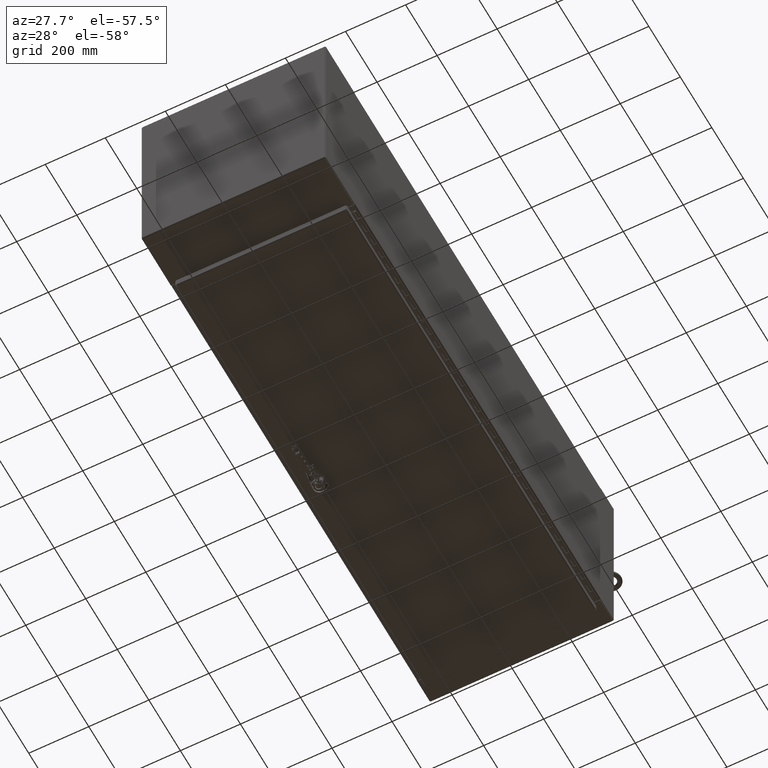
[diagram: clean part render]
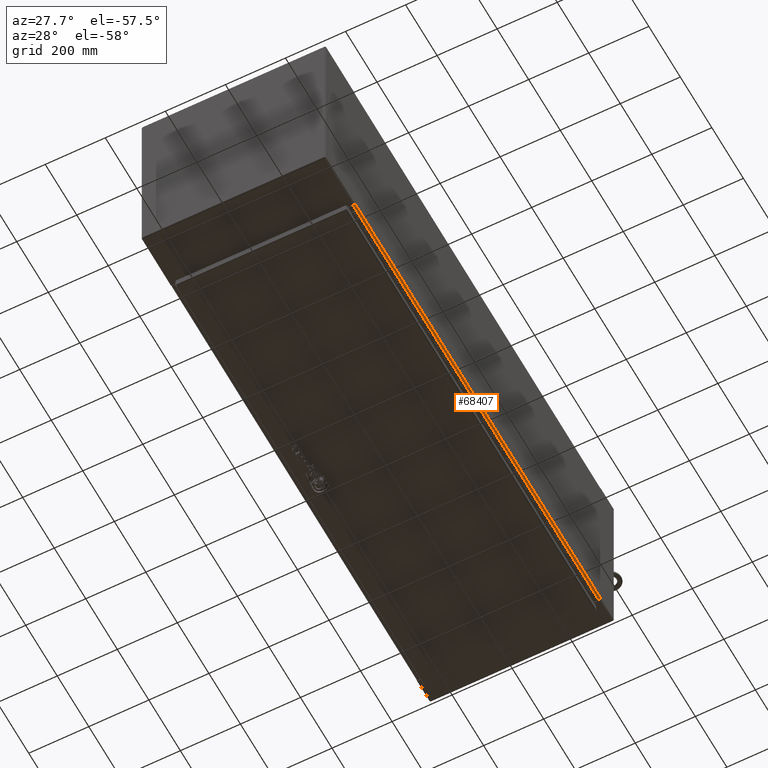
[diagram: same view with one face highlighted and labeled with its STEP entity id]
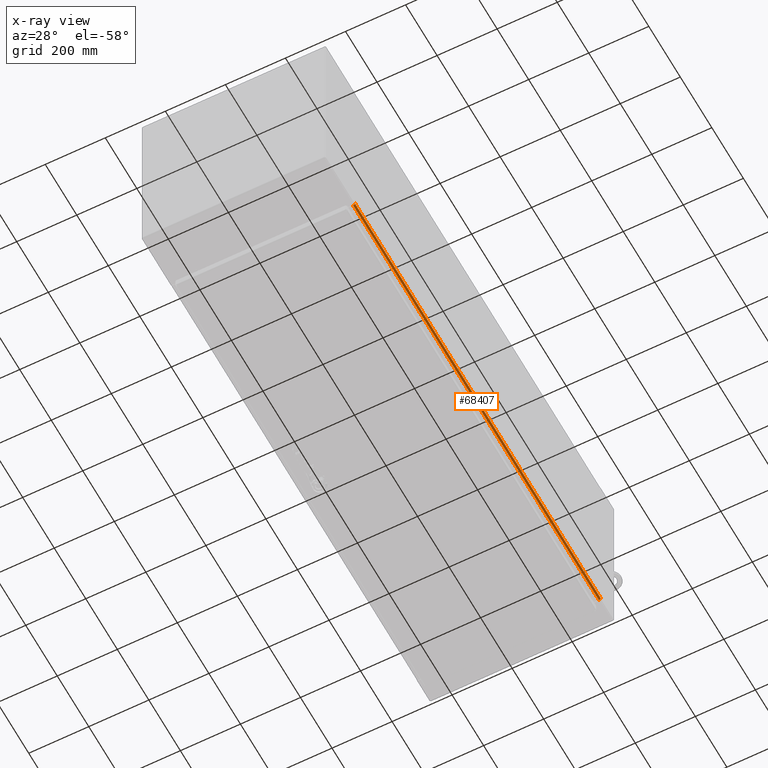
[diagram: x-ray of the same camera — body ghosted, the highlighted face saturated]
A machine part, auxiliary view. The second image highlights one B-rep face of the part: STEP entity #68407.
The next image is the same camera in x-ray: the body ghosted, the highlighted face saturated — about 0% of this face is hidden behind the body in this view.
In plain terms, the highlighted cylindrical surface (edge-blend (fillet) strip) has radius 6.2135 mm, axis along (-0, 1, 0).
Its self-contained STEP definition (entity closure, byte-faithful):
#10398=FACE_OUTER_BOUND('',#13358,.T.);
#13358=EDGE_LOOP('',(#50459,#50460,#50461,#50462));
#16450=CIRCLE('',#72222,0.244625);
#16451=CIRCLE('',#72224,0.244625);
#20081=LINE('',#96800,#25247);
#20095=LINE('',#96844,#25261);
#25247=VECTOR('',#78732,0.393700787401575);
#25261=VECTOR('',#78786,0.393700787401575);
#30399=VERTEX_POINT('',#96792);
#30401=VERTEX_POINT('',#96798);
#30410=VERTEX_POINT('',#96835);
#30411=VERTEX_POINT('',#96839);
#39706=EDGE_CURVE('',#30401,#30399,#20081,.T.);
#39724=EDGE_CURVE('',#30410,#30399,#16450,.T.);
#39727=EDGE_CURVE('',#30411,#30401,#16451,.T.);
#39728=EDGE_CURVE('',#30410,#30411,#20095,.T.);
#50459=ORIENTED_EDGE('',*,*,#39706,.F.);
#50460=ORIENTED_EDGE('',*,*,#39727,.F.);
#50461=ORIENTED_EDGE('',*,*,#39728,.F.);
#50462=ORIENTED_EDGE('',*,*,#39724,.T.);
#64930=CYLINDRICAL_SURFACE('',#72226,0.244625);
#68407=ADVANCED_FACE('',(#10398),#64930,.T.);
#72222=AXIS2_PLACEMENT_3D('',#96836,#78774,#78775);
#72224=AXIS2_PLACEMENT_3D('',#96841,#78780,#78781);
#72226=AXIS2_PLACEMENT_3D('',#96843,#78784,#78785);
#78732=DIRECTION('',(-1.75435705093135E-16,-1.,3.48986205294192E-33));
#78774=DIRECTION('center_axis',(1.75040053878845E-16,1.,0.));
#78775=DIRECTION('ref_axis',(-5.71775645480268E-14,0.,1.));
#78780=DIRECTION('center_axis',(1.75040053878845E-16,1.,0.));
#78781=DIRECTION('ref_axis',(0.,0.,1.));
#78784=DIRECTION('center_axis',(1.75040053878845E-16,1.,0.));
#78785=DIRECTION('ref_axis',(0.,0.,1.));
#78786=DIRECTION('',(1.82316079544584E-16,1.,0.));
#96792=CARTESIAN_POINT('',(12.0625,-28.6875,-0.140625000000004));
#96798=CARTESIAN_POINT('',(12.0625,32.6875,-0.140625000000004));
#96800=CARTESIAN_POINT('',(12.0625,1.99999999999999,-0.140625000000004));
#96835=CARTESIAN_POINT('',(11.817875,-28.6875,0.104));
#96836=CARTESIAN_POINT('Origin',(11.817875,-28.6875,-0.140625));
#96839=CARTESIAN_POINT('',(11.817875,32.6875,0.104));
#96841=CARTESIAN_POINT('Origin',(11.817875,32.6875,-0.140625));
#96843=CARTESIAN_POINT('Origin',(11.817875,1.99999999999999,-0.140625));
#96844=CARTESIAN_POINT('',(11.817875,16.34375,0.104));